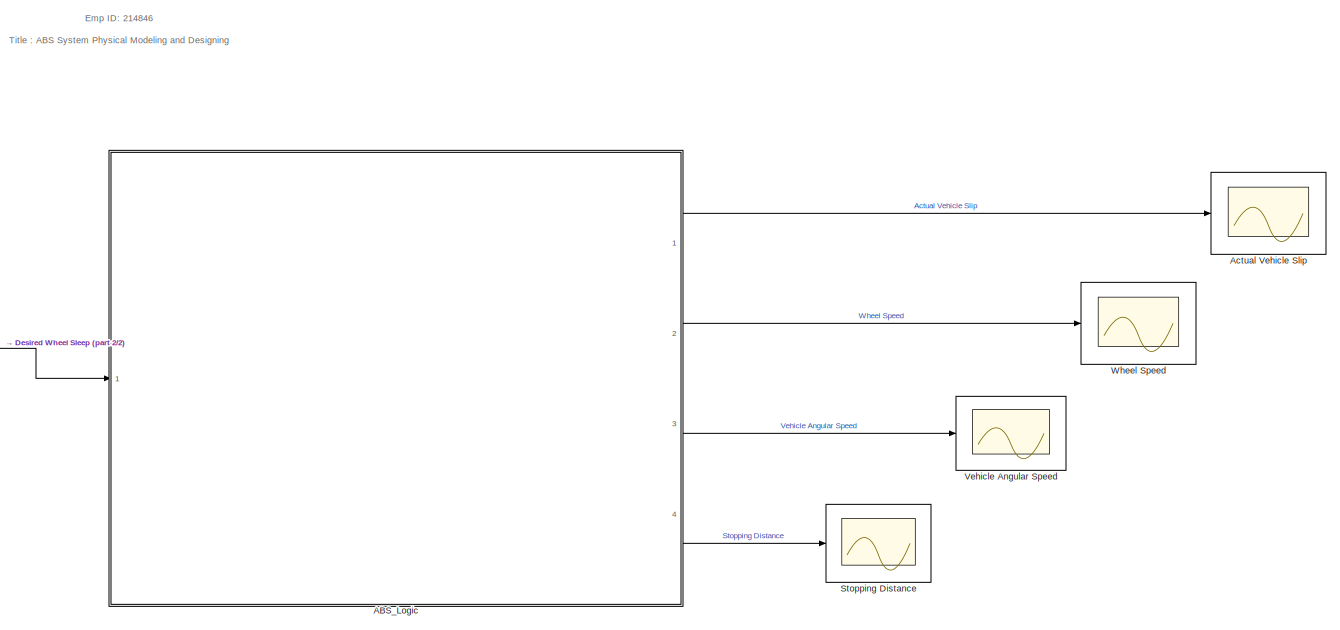
[diagram: root canvas - part 1/2, most of the canvas]
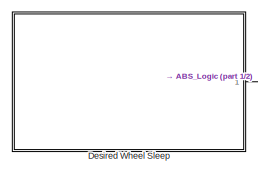
[diagram: root canvas - part 2/2, middle left region]
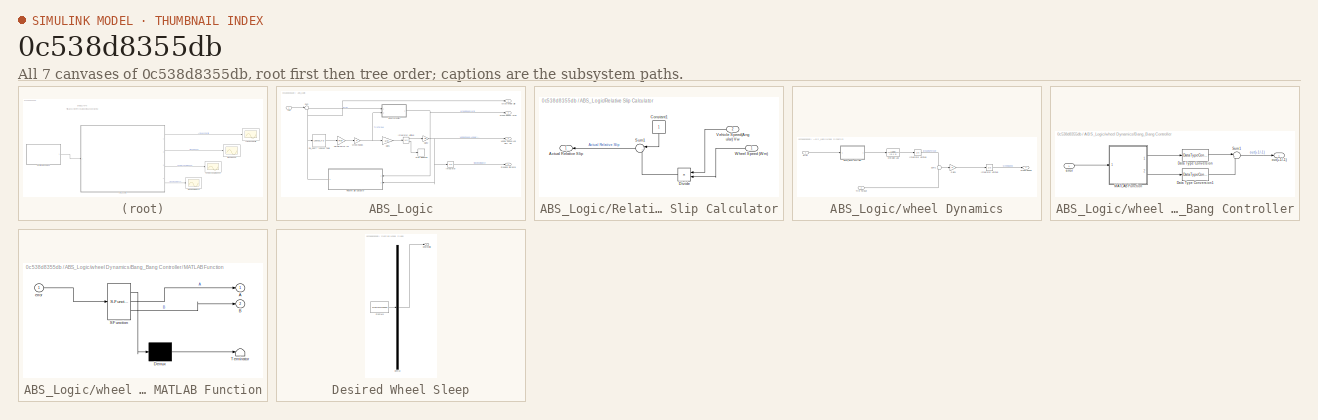
[diagram: thumbnail index - all 7 canvases of the model, root first then tree order]
MODEL slx_0c538d8355db
KIND model
CONFIG AbsTol = auto
CONFIG EnableMultiTasking = off
CONFIG FixedStep = auto
CONFIG MaxStep = auto
CONFIG MinStep = auto
CONFIG RelTol = 1e-3
CONFIG SampleTimeConstraint = Unconstrained
CONFIG Solver = VariableStepAuto
CONFIG SolverName = VariableStepAuto
CONFIG StartTime = 0.0
CONFIG StopTime = 20
WORKSPACE source: mxarray member
WORKSPACE I = 6
WORKSPACE R = 1.25
WORKSPACE g = 9.01
WORKSPACE m = 75
WORKSPACE v0 = 88
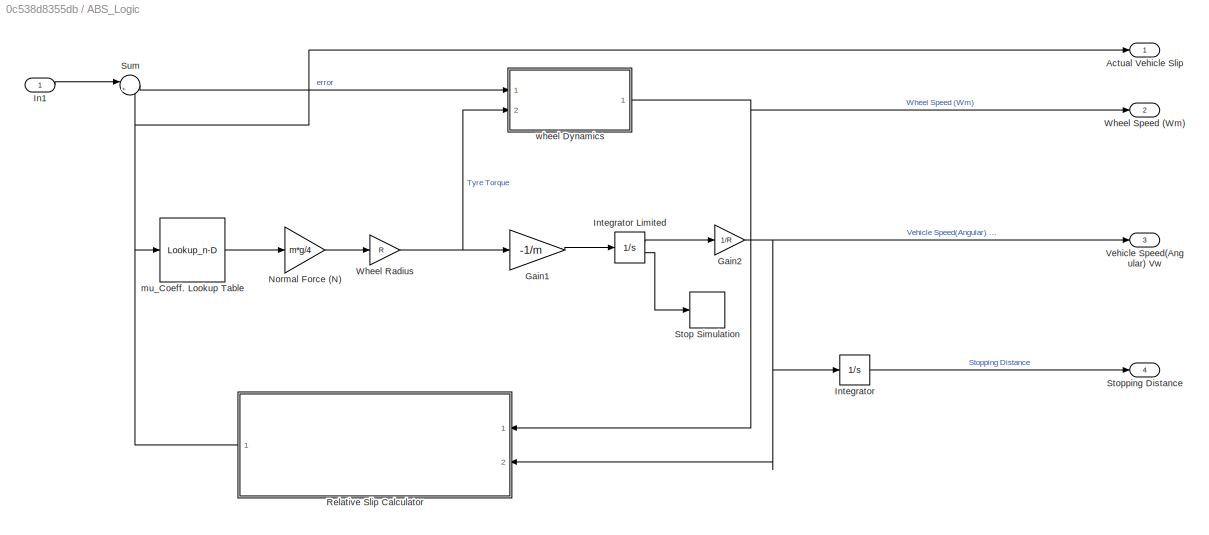
BLOCK [SubSystem] ABS_Logic
  Ports = [1, 4]
  RequestExecContextInheritance = off
BLOCK [Outport] ABS_Logic/Actual Vehicle Slip
BLOCK [Gain] ABS_Logic/Gain1
  Gain = -1/m
BLOCK [Gain] ABS_Logic/Gain2
  Gain = 1/R
BLOCK [Inport] ABS_Logic/In1
BLOCK [Integrator] ABS_Logic/Integrator
  Ports = [1, 1]
BLOCK [Integrator] ABS_Logic/Integrator Limited
  InitialCondition = v0
  LimitOutput = on
  LowerSaturationLimit = 0
  Ports = [1, 2]
  ShowSaturationPort = on
  UpperSaturationLimit = 1000
BLOCK [Gain] ABS_Logic/Normal Force (N)
  Gain = m*g/4
BLOCK [SubSystem] ABS_Logic/Relative Slip Calculator
  Ports = [2, 1]
  RequestExecContextInheritance = off
BLOCK [Constant] ABS_Logic/Relative Slip Calculator/  Constant1
  NameLocation = left
BLOCK [Outport] ABS_Logic/Relative Slip Calculator/Actual Relative Slip
  NameLocation = top
BLOCK [Product] ABS_Logic/Relative Slip Calculator/Divide
  Inputs = /*
  NameLocation = top
  Ports = [2, 1]
BLOCK [Sum] ABS_Logic/Relative Slip Calculator/Sum1
  Inputs = |+-
  NameLocation = top
  Ports = [2, 1]
BLOCK [Inport] ABS_Logic/Relative Slip Calculator/Vehicle Speed(Angular) Vw
  NameLocation = top
  Port = 2
BLOCK [Inport] ABS_Logic/Relative Slip Calculator/Wheel Speed (Wm)
  NameLocation = top
BLOCK [Stop] ABS_Logic/Stop Simulation
BLOCK [Outport] ABS_Logic/Stopping Distance
  Port = 4
BLOCK [Sum] ABS_Logic/Sum
  Inputs = |+-
  Ports = [2, 1]
BLOCK [Outport] ABS_Logic/Vehicle Speed(Angular) Vw
  Port = 3
BLOCK [Gain] ABS_Logic/Wheel Radius
  Gain = R
BLOCK [Outport] ABS_Logic/Wheel Speed (Wm)
  Port = 2
BLOCK [Lookup_n-D] ABS_Logic/mu_Coeff.  Lookup Table
  BreakpointsForDimension1 = [0,0.05,0.1,0.15,0.2,0.25,0.3,0.35,0.4,0.45,0.5,0.55,0.6,0.65,0.7,0.75,0.8,0.85,0.9,0.95,1]
  BreakpointsForDimension1FirstPoint = 0
  BreakpointsForDimension1Spacing = 0.05
  InternalRulePriority = Speed
  NumberOfTableDimensions = 1
  Ports = [1, 1]
  RndMeth = Simplest
  Table = [0,0.4,0.8,0.97,1,0.98,0.96,0.94,0.92,0.9,0.88,0.85,0.83,0.81,0.79,0.77,0.75,0.73,0.72,0.71,0.7]
BLOCK [SubSystem] ABS_Logic/wheel Dynamics
  Ports = [2, 1]
  RequestExecContextInheritance = off
BLOCK [Integrator] ABS_Logic/wheel Dynamics/ Integrator Limited
  LimitOutput = on
  LowerSaturationLimit = 0
  Ports = [1, 1]
  UpperSaturationLimit = 1000
BLOCK [SubSystem] ABS_Logic/wheel Dynamics/Bang_Bang Controller
  Ports = [1, 1]
  RequestExecContextInheritance = off
BLOCK [DataTypeConversion] ABS_Logic/wheel Dynamics/Bang_Bang Controller/ Data Type Conversion
  OutDataTypeStr = double
  SaturateOnIntegerOverflow = off
BLOCK [DataTypeConversion] ABS_Logic/wheel Dynamics/Bang_Bang Controller/ Data Type Conversion1
  OutDataTypeStr = double
  SaturateOnIntegerOverflow = off
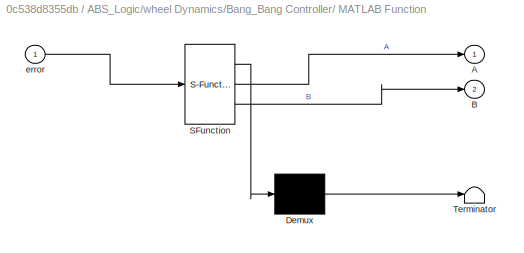
BLOCK [SubSystem] ABS_Logic/wheel Dynamics/Bang_Bang Controller/ MATLAB Function
  ErrorFcn = Stateflow.Translate.translate
  PermitHierarchicalResolution = ExplicitOnly
  Ports = [1, 2]
  RequestExecContextInheritance = off
  SFBlockType = MATLAB Function
  TreatAsAtomicUnit = on
BLOCK [Demux] ABS_Logic/wheel Dynamics/Bang_Bang Controller/ MATLAB Function/ Demux 
  Outputs = 1
  Ports = [1, 1]
BLOCK [S-Function] ABS_Logic/wheel Dynamics/Bang_Bang Controller/ MATLAB Function/ SFunction 
  EnableBusSupport = on
  FunctionName = sf_sfun
  PortCounts = [1 3]
  Ports = [1, 3]
  SFcnIsStateOwnerBlock = off
  SFunctionDeploymentMode = off
  Tag = Stateflow S-Function 2
BLOCK [Terminator] ABS_Logic/wheel Dynamics/Bang_Bang Controller/ MATLAB Function/ Terminator 
BLOCK [Outport] ABS_Logic/wheel Dynamics/Bang_Bang Controller/ MATLAB Function/A
BLOCK [Outport] ABS_Logic/wheel Dynamics/Bang_Bang Controller/ MATLAB Function/B
  Port = 2
BLOCK [Inport] ABS_Logic/wheel Dynamics/Bang_Bang Controller/ MATLAB Function/error
BLOCK [Sum] ABS_Logic/wheel Dynamics/Bang_Bang Controller/Sum1
  Inputs = |+-
  Ports = [2, 1]
BLOCK [Inport] ABS_Logic/wheel Dynamics/Bang_Bang Controller/error
BLOCK [Outport] ABS_Logic/wheel Dynamics/Bang_Bang Controller/out(+1//-1)
  NameLocation = top
BLOCK [Gain] ABS_Logic/wheel Dynamics/Gain1
  Gain = 1/I
BLOCK [TransferFcn] ABS_Logic/wheel Dynamics/Hydraulic Lag 
  Denominator = [0.1 1]
  Numerator = [100]
BLOCK [Integrator] ABS_Logic/wheel Dynamics/Integrator Limited
  InitialCondition = v0/R
  LimitOutput = on
  LowerSaturationLimit = 0
  Ports = [1, 1]
  UpperSaturationLimit = 1000
BLOCK [Sum] ABS_Logic/wheel Dynamics/Sum1
  Inputs = -+
  Ports = [2, 1]
BLOCK [Inport] ABS_Logic/wheel Dynamics/Tyre Torque
  Port = 2
BLOCK [Outport] ABS_Logic/wheel Dynamics/Wheel Speed
BLOCK [Inport] ABS_Logic/wheel Dynamics/error
BLOCK [Scope] Actual Vehicle Slip
  Floating = off
  NumInputPorts = 1
  Ports = [1]
  ScopeSpecificationString = Simulink.scopes.TimeScopeBlockCfg('CurrentConfiguration', extmgr.ConfigurationSet(extmgr.Configuration('Core','General UI',true),extmgr.Configuration('Core','Source UI',true),extmgr.Configuration('Sources','WiredSimulink',true,'DataLoggingVariableName','ScopeData1'),extmgr.Configuration('Visuals','Time Domain',true,'SerializedDisplays',{struct('MinYLimReal','-0.04099','MaxYLimReal','0.36892','YLab...<+1473ch>
BLOCK [SubSystem] Desired Wheel Sleep
  ClipboardFcn = sigbuilder_block('clipboard');
  CloseFcn = sigbuilder_block('close');
  ContinueFcn = sigbuilder_block('continue');
  CopyFcn = sigbuilder_block('copy');
  DeleteFcn = sigbuilder_block('delete');
  LoadFcn = sigbuilder_block('load');
  MaskHideContents = on
  ModelCloseFcn = sigbuilder_block('modelClose');
  NameChangeFcn = sigbuilder_block('namechange');
  OpenFcn = sigbuilder_block('open',[437.6 199.2 550.4 400 ]);
  PauseFcn = sigbuilder_block('pause');
  Ports = [0, 1]
  PreSaveFcn = sigbuilder_block('preSave');
  RequestExecContextInheritance = off
  StartFcn = sigbuilder_block('start');
  StopFcn = sigbuilder_block('stop');
  Tag = STV Subsys
BLOCK [Demux] Desired Wheel Sleep/Demux
  DisplayOption = none
  Outputs = 1
  Ports = [1, 1]
  Tag = STV Demux
BLOCK [Outport] Desired Wheel Sleep/DesiredSlip
  Tag = STV Outport
BLOCK [FromWorkspace] Desired Wheel Sleep/FromWs
  Tag = STV FromWs
  VariableName = tuvar
BLOCK [Scope] Stopping Distance
  Floating = off
  NumInputPorts = 1
  Ports = [1]
  ScopeSpecificationString = Simulink.scopes.TimeScopeBlockCfg('CurrentConfiguration', extmgr.ConfigurationSet(extmgr.Configuration('Core','General UI',true),extmgr.Configuration('Core','Source UI',true),extmgr.Configuration('Sources','WiredSimulink',true,'DataLoggingVariableName','ScopeData2'),extmgr.Configuration('Visuals','Time Domain',true,'SerializedDisplays',{struct('MinYLimReal','-130.57013','MaxYLimReal','1175.13113',...<+1487ch>
BLOCK [Scope] Vehicle Angular Speed
  Floating = off
  NumInputPorts = 1
  Ports = [1]
  ScopeSpecificationString = Simulink.scopes.TimeScopeBlockCfg('CurrentConfiguration', extmgr.ConfigurationSet(extmgr.Configuration('Core','General UI',true),extmgr.Configuration('Core','Source UI',true),extmgr.Configuration('Sources','WiredSimulink',true,'DataLoggingVariableName','ScopeData3'),extmgr.Configuration('Visuals','Time Domain',true,'SerializedDisplays',{struct('MinYLimReal','26.8229','MaxYLimReal','75.2419','YLabe...<+1477ch>
BLOCK [Scope] Wheel Speed
  Floating = off
  NumInputPorts = 1
  Ports = [1]
  ScopeSpecificationString = Simulink.scopes.TimeScopeBlockCfg('CurrentConfiguration', extmgr.ConfigurationSet(extmgr.Configuration('Core','General UI',true),extmgr.Configuration('Core','Source UI',true),extmgr.Configuration('Sources','WiredSimulink',true),extmgr.Configuration('Visuals','Time Domain',true,'SerializedDisplays',{struct('MinYLimReal','17.96737','MaxYLimReal','76.22585','YLabelReal','','MinYLimMag','17.96737','Ma...<+1436ch>
ANNOTATION (root): Emp ID: 214846 Title : ABS System Physical Modeling and Designing
LINE ABS_Logic/Gain1:1 -> ABS_Logic/Integrator Limited:1
NET ABS_Logic/Gain2:1 -> ABS_Logic/Integrator:1, ABS_Logic/Relative Slip Calculator:2, ABS_Logic/Vehicle Speed(Angular) Vw:1
LINE ABS_Logic/In1:1 -> ABS_Logic/Sum:1
LINE ABS_Logic/Integrator Limited:1 -> ABS_Logic/Gain2:1
LINE ABS_Logic/Integrator Limited:2 -> ABS_Logic/Stop Simulation:1
LINE ABS_Logic/Integrator:1 -> ABS_Logic/Stopping Distance:1
LINE ABS_Logic/Normal Force (N):1 -> ABS_Logic/Wheel Radius:1
LINE ABS_Logic/Relative Slip Calculator/  Constant1:1 -> ABS_Logic/Relative Slip Calculator/Sum1:1
LINE ABS_Logic/Relative Slip Calculator/Divide:1 -> ABS_Logic/Relative Slip Calculator/Sum1:2
LINE ABS_Logic/Relative Slip Calculator/Sum1:1 -> ABS_Logic/Relative Slip Calculator/Actual Relative Slip:1
LINE ABS_Logic/Relative Slip Calculator/Vehicle Speed(Angular) Vw:1 -> ABS_Logic/Relative Slip Calculator/Divide:1
LINE ABS_Logic/Relative Slip Calculator/Wheel Speed (Wm):1 -> ABS_Logic/Relative Slip Calculator/Divide:2
NET ABS_Logic/Relative Slip Calculator:1 -> ABS_Logic/Actual Vehicle Slip:1, ABS_Logic/Sum:2, ABS_Logic/mu_Coeff.  Lookup Table:1
LINE ABS_Logic/Sum:1 -> ABS_Logic/wheel Dynamics:1
NET ABS_Logic/Wheel Radius:1 -> ABS_Logic/Gain1:1, ABS_Logic/wheel Dynamics:2
LINE ABS_Logic/mu_Coeff.  Lookup Table:1 -> ABS_Logic/Normal Force (N):1
LINE ABS_Logic/wheel Dynamics/ Integrator Limited:1 -> ABS_Logic/wheel Dynamics/Sum1:1
LINE ABS_Logic/wheel Dynamics/Bang_Bang Controller/ Data Type Conversion1:1 -> ABS_Logic/wheel Dynamics/Bang_Bang Controller/Sum1:2
LINE ABS_Logic/wheel Dynamics/Bang_Bang Controller/ Data Type Conversion:1 -> ABS_Logic/wheel Dynamics/Bang_Bang Controller/Sum1:1
LINE ABS_Logic/wheel Dynamics/Bang_Bang Controller/ MATLAB Function:1 -> ABS_Logic/wheel Dynamics/Bang_Bang Controller/ Data Type Conversion:1
LINE ABS_Logic/wheel Dynamics/Bang_Bang Controller/ MATLAB Function:2 -> ABS_Logic/wheel Dynamics/Bang_Bang Controller/ Data Type Conversion1:1
LINE ABS_Logic/wheel Dynamics/Bang_Bang Controller/Sum1:1 -> ABS_Logic/wheel Dynamics/Bang_Bang Controller/out(+1//-1):1
LINE ABS_Logic/wheel Dynamics/Bang_Bang Controller/error:1 -> ABS_Logic/wheel Dynamics/Bang_Bang Controller/ MATLAB Function:1
LINE ABS_Logic/wheel Dynamics/Bang_Bang Controller:1 -> ABS_Logic/wheel Dynamics/Hydraulic Lag :1
LINE ABS_Logic/wheel Dynamics/Gain1:1 -> ABS_Logic/wheel Dynamics/Integrator Limited:1
LINE ABS_Logic/wheel Dynamics/Hydraulic Lag :1 -> ABS_Logic/wheel Dynamics/ Integrator Limited:1
LINE ABS_Logic/wheel Dynamics/Integrator Limited:1 -> ABS_Logic/wheel Dynamics/Wheel Speed:1
LINE ABS_Logic/wheel Dynamics/Sum1:1 -> ABS_Logic/wheel Dynamics/Gain1:1
LINE ABS_Logic/wheel Dynamics/Tyre Torque:1 -> ABS_Logic/wheel Dynamics/Sum1:2
LINE ABS_Logic/wheel Dynamics/error:1 -> ABS_Logic/wheel Dynamics/Bang_Bang Controller:1
NET ABS_Logic/wheel Dynamics:1 -> ABS_Logic/Relative Slip Calculator:1, ABS_Logic/Wheel Speed (Wm):1
LINE ABS_Logic:1 -> Actual Vehicle Slip:1
LINE ABS_Logic:2 -> Wheel Speed:1
LINE ABS_Logic:3 -> Vehicle Angular Speed:1
LINE ABS_Logic:4 -> Stopping Distance:1
LINE Desired Wheel Sleep:1 -> ABS_Logic:1
note: NET lines group one-source signal fan-out (src -> all destinations, sorted); 1:1 wires keep LINE
CHART ABS_Logic/wheel Dynamics/Bang_Bang Controller/ MATLAB Function states=1 transitions=1
  STATE_LABEL 'eML_blk_kernel()'
  STATE_LABEL 'SCRIPT:\nfunction [A,B]= fcn(error)\n if error>0\n     A=1;\n     B=0;\n else\n     A=0;\n     B=1;\n end;    \n\n'
CHART  states=0 transitions=0
